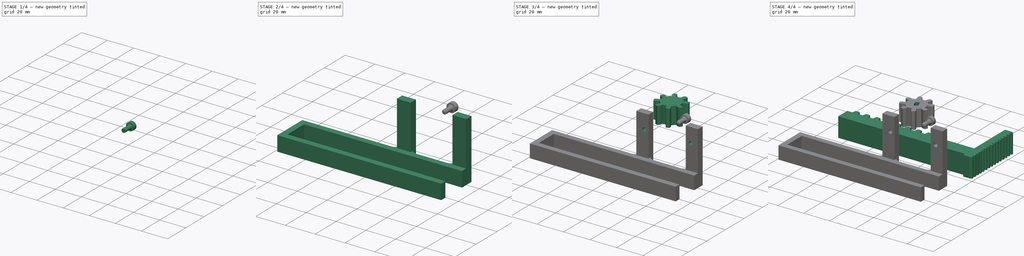
[diagram: build sequence overview — one tinted view per stage of 4, left to right]
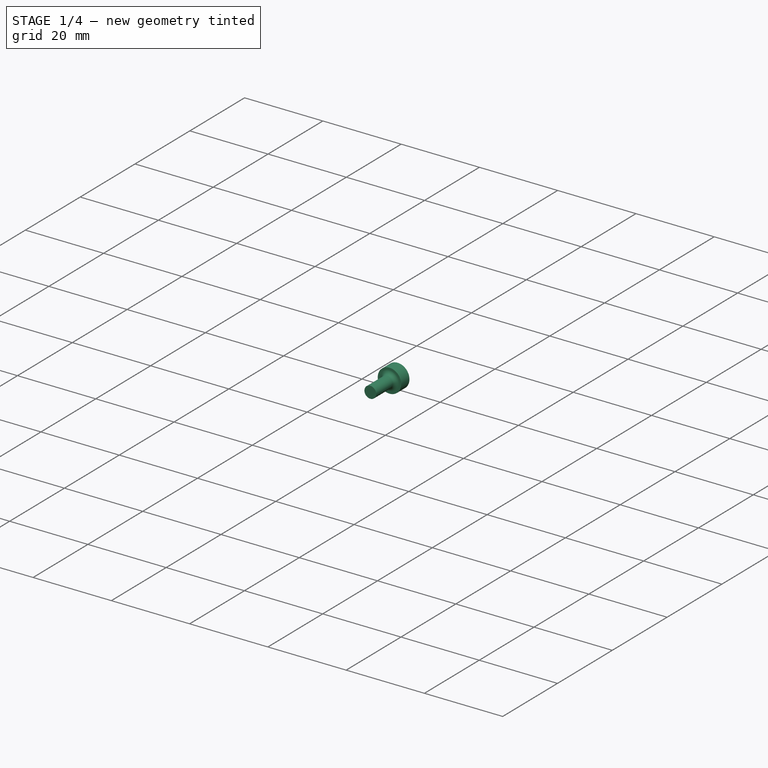
[diagram: stage 1 of 4 — iso view after this stage's code; geometry added in this stage tinted green]
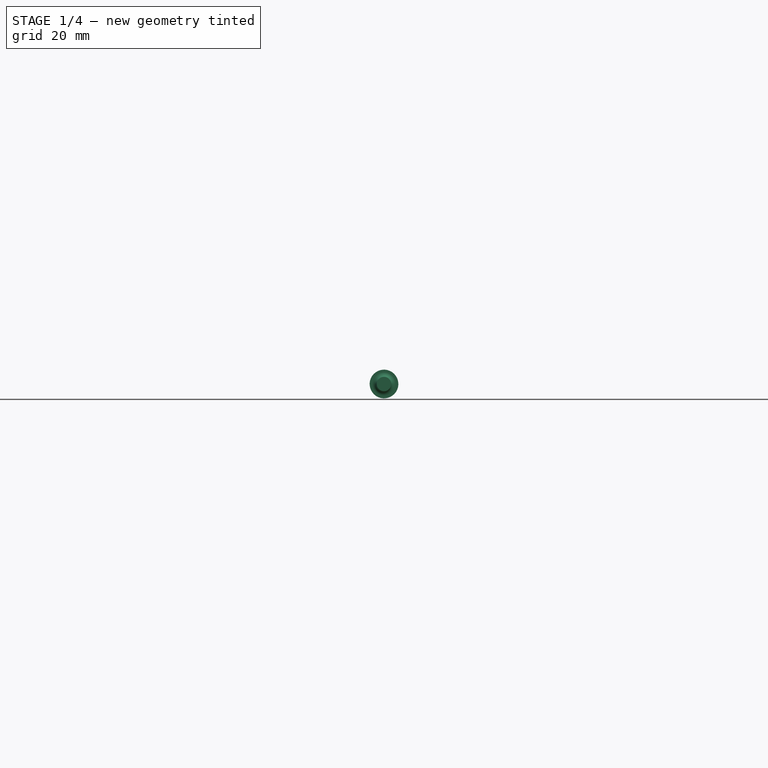
[diagram: stage 1 of 4 — front view after this stage's code; geometry added in this stage tinted green]
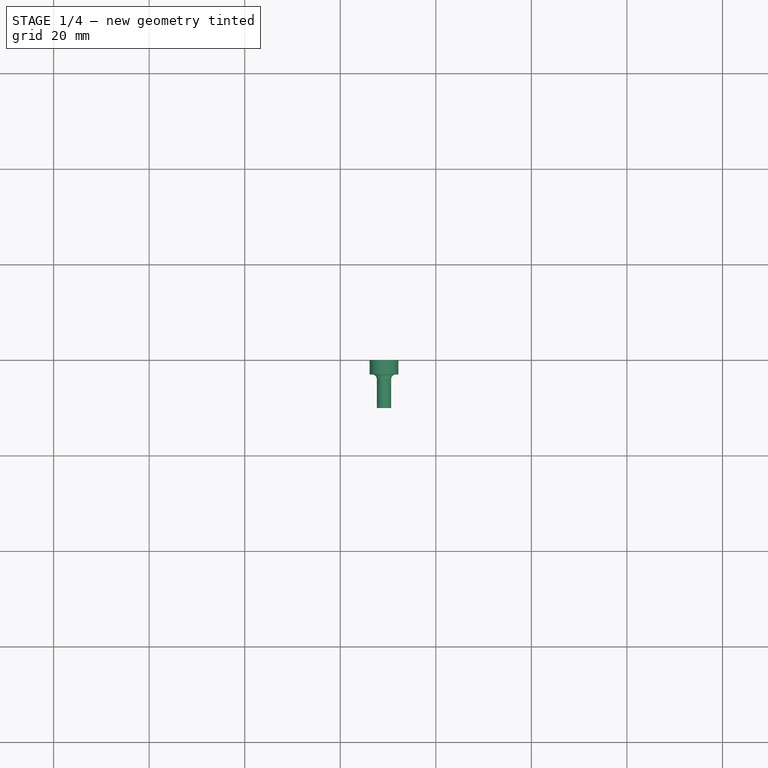
[diagram: stage 1 of 4 — top view after this stage's code; geometry added in this stage tinted green]
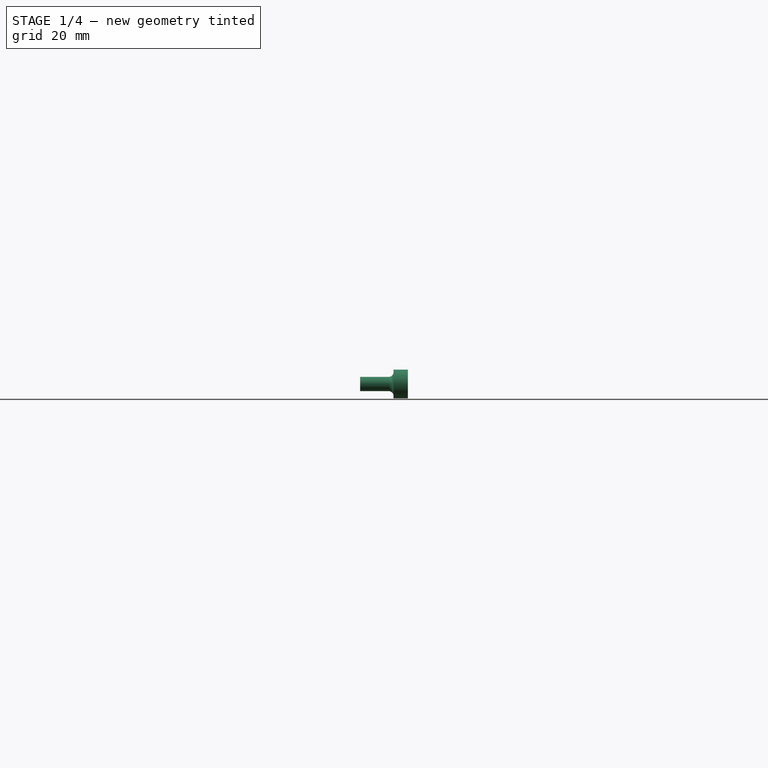
[diagram: stage 1 of 4 — right view after this stage's code; geometry added in this stage tinted green]
FCSTD DOCUMENT  (FreeCAD 0.16R6712 (Git))
Label: gear
License: All rights reserved
LicenseURL: http://en.wikipedia.org/wiki/All_rights_reserved
objects: Sketcher::SketchObject×9, PartDesign::Pad×5, App::MeasureDistance×4, Part::FeaturePython×2, PartDesign::Pocket×2, PartDesign::Fillet×2
note: 27 computed .brp shape members not serialized (recipe doc carries the construction recipe); baked Part::Feature solids carry a one-line shape summary decoded from their .brp

FEATURE [App::MeasureDistance] Distance002  label="Distance: 15.1098 mm"
  Distance = 15.1098
  P1 = (-9.7107,11,0)
  P2 = (-7.89263,11,15)
FEATURE [App::MeasureDistance] Distance003  label="Distance: 16.2804 mm"
  Distance = 16.2804
  P1 = (-23.5578,-27.4611,10)
  P2 = (-20.5495,-43.4611,10)
FEATURE [Sketcher::SketchObject] Sketch007
  Placement = pos=(0,0,0) rot=(-1,0,0;4.71239rad)
  sketch-geometry (1):
    g0: Circle CenterX=-30.8484 CenterY=32.3111 CenterZ=0 NormalX=0 NormalY=0 NormalZ=1 Radius=3
  constraints (1):
    c: Radius(g0) = 3
FEATURE [PartDesign::Pad] Pad003
  Length = 3
  Length2 = 100
  Placement = pos=(0,0,0) rot=(-1,0,0;4.71239rad)
  Sketch = -> Sketch007
  Type = 0
FEATURE [Sketcher::SketchObject] Sketch008
  ExternalGeometry = -> [Pad003]
  Placement = pos=(0,-3,0) rot=(1,0,0;1.5708rad)
  Support = -> Pad003 [Face3]
  sketch-geometry (1):
    g0: Circle CenterX=-30.8484 CenterY=32.3111 CenterZ=0 NormalX=0 NormalY=0 NormalZ=1 Radius=1.5
  constraints (2):
    c: Radius(g0) = 1.5
    c: Coincident(g0,g-3)
FEATURE [PartDesign::Pad] Pad004
  Length = 7
  Length2 = 82
  Placement = pos=(0,0,0) rot=(-1,0,0;4.71239rad)
  Sketch = -> Sketch008
  Type = 0
FEATURE [PartDesign::Fillet] Fillet
  Base = -> Pad004 [Edge4]
  Placement = pos=(0,0,0) rot=(-1,0,0;4.71239rad)
  Radius = 1
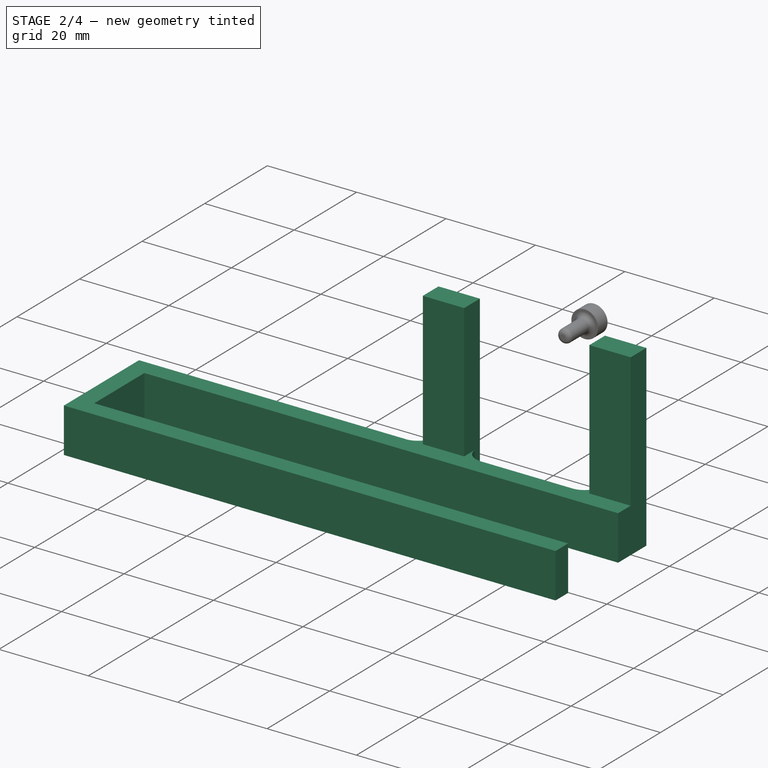
[diagram: stage 2 of 4 — iso view after this stage's code; geometry added in this stage tinted green]
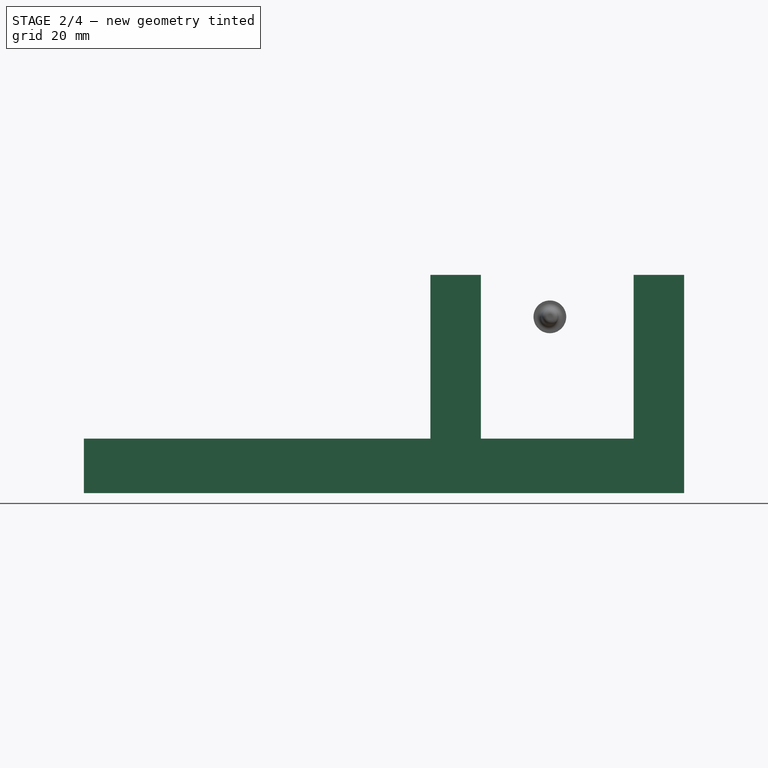
[diagram: stage 2 of 4 — front view after this stage's code; geometry added in this stage tinted green]
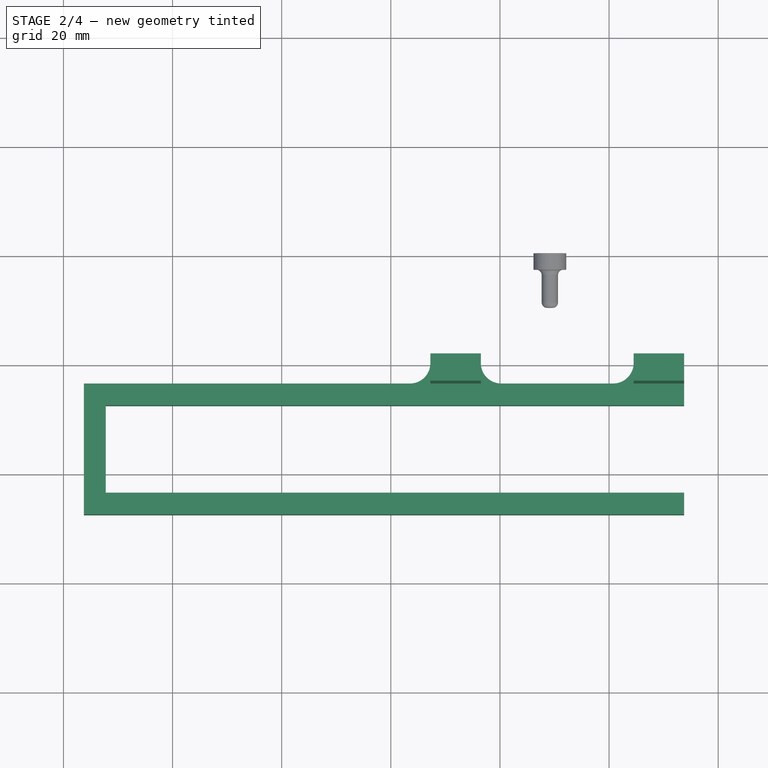
[diagram: stage 2 of 4 — top view after this stage's code; geometry added in this stage tinted green]
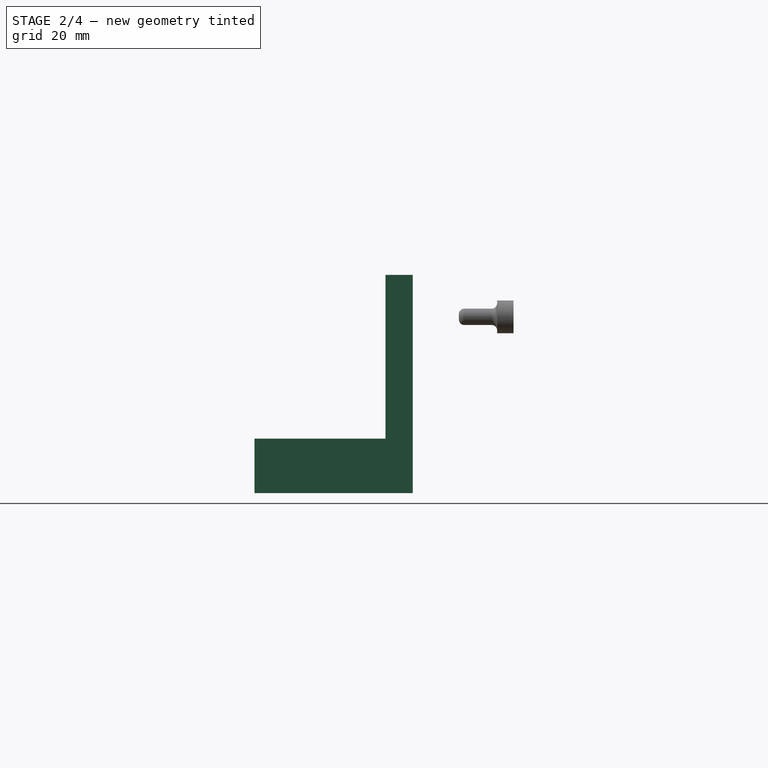
[diagram: stage 2 of 4 — right view after this stage's code; geometry added in this stage tinted green]
FEATURE [Sketcher::SketchObject] Sketch003
  sketch-geometry (4):
    g0: Circle CenterX=-57.9793 CenterY=21.8922 CenterZ=0 NormalX=0 NormalY=0 NormalZ=1 Radius=11.4248
    g1: GeomPoint [constr] X=-59.8931 Y=23.5985 Z=0
    g2: Circle CenterX=-57.9793 CenterY=21.8922 CenterZ=0 NormalX=0 NormalY=0 NormalZ=1 Radius=0
    g3: Circle CenterX=-57.9793 CenterY=21.8922 CenterZ=0 NormalX=0 NormalY=0 NormalZ=1 Radius=0.882686
  constraints (3):
    c: Radius(g0) = 11.4248
    c: Coincident(g2,g0)
    c: Coincident(g3,g0)
FEATURE [App::MeasureDistance] Distance  label="Distance: 20.9984 mm"
  Distance = 20.8922
  P1 = (-57.9793,21.8922,0)
  P2 = (-58,1,0)
FEATURE [Sketcher::SketchObject] Sketch002
  sketch-geometry (17):
    g0: LineSegment StartX=-39.7574 StartY=-23.4611 StartZ=0 EndX=-19.2353 EndY=-23.4611 EndZ=0
    g1: LineSegment StartX=-6.24636 StartY=-47.4611 StartZ=0 EndX=-116.246 EndY=-47.4611 EndZ=0
    g2: LineSegment StartX=-116.246 StartY=-47.4611 StartZ=0 EndX=-116.246 EndY=-23.4611 EndZ=0
    g3: LineSegment StartX=-6.24636 StartY=-27.4611 StartZ=0 EndX=-112.246 EndY=-27.4611 EndZ=0
    g4: LineSegment StartX=-112.246 StartY=-27.4611 StartZ=0 EndX=-112.246 EndY=-43.4611 EndZ=0
    g5: LineSegment StartX=-112.246 StartY=-43.4611 StartZ=0 EndX=-6.24636 EndY=-43.4611 EndZ=0
    g6: LineSegment StartX=-52.7464 StartY=-18.4611 StartZ=0 EndX=-43.4964 EndY=-18.4611 EndZ=0
    g7: LineSegment StartX=-43.4964 StartY=-18.4611 StartZ=0 EndX=-43.4964 EndY=-19.7221 EndZ=0
    g8: LineSegment StartX=-52.7464 StartY=-19.7221 StartZ=0 EndX=-52.7464 EndY=-18.4611 EndZ=0
    g9: LineSegment StartX=-15.4964 StartY=-18.4611 StartZ=0 EndX=-6.24636 EndY=-18.4611 EndZ=0
    g10: LineSegment StartX=-15.4964 StartY=-19.7221 StartZ=0 EndX=-15.4964 EndY=-18.4611 EndZ=0
    g11: LineSegment StartX=-6.24636 StartY=-43.4611 StartZ=0 EndX=-6.24636 EndY=-47.4611 EndZ=0
    g12: LineSegment StartX=-116.246 StartY=-23.4611 StartZ=0 EndX=-56.4853 EndY=-23.4611 EndZ=0
    g13: ArcOfCircle CenterX=-39.7574 CenterY=-19.7221 CenterZ=0 NormalX=0 NormalY=0 NormalZ=1 Radius=3.73895 StartAngle=3.14159 EndAngle=4.71239
    g14: ArcOfCircle CenterX=-56.4853 CenterY=-19.7221 CenterZ=0 NormalX=0 NormalY=0 NormalZ=1 Radius=3.73895 StartAngle=4.71239 EndAngle=6.28319
    g15: ArcOfCircle CenterX=-19.2353 CenterY=-19.7221 CenterZ=0 NormalX=0 NormalY=0 NormalZ=1 Radius=3.73895 StartAngle=4.71239 EndAngle=6.28319
    g16: LineSegment StartX=-6.24636 StartY=-18.4611 StartZ=0 EndX=-6.24636 EndY=-27.4611 EndZ=0
  constraints (46):
    c: Coincident(g11,g1)
    c: Coincident(g1,g2)
    c: Horizontal(g1)
    c: Vertical(g2)
    c: Coincident(g3,g4)
    c: Coincident(g4,g5)
    c: Horizontal(g3)
    c: Horizontal(g5)
    c: Vertical(g4)
    c: DistanceY(g5,g3) = 16
    c: DistanceX(g3,g3) = 106
    c: Coincident(g6,g7)
    c: Coincident(g8,g6)
    c: Horizontal(g6)
    c: Vertical(g7)
    c: Vertical(g8)
    c: DistanceX(g6,g6) = 9.25
    c: Coincident(g10,g9)
    c: Horizontal(g9)
    c: Vertical(g10)
    c: Equal(g6,g9) = 10
    c: DistanceX(g2,g3) = 4
    c: Coincident(g12,g2)
    c: Horizontal(g12)
    c: DistanceX(g6,g9) = 28
    c: Coincident(g5,g11)
    c: DistanceY(g2,g2) = 24
    c: DistanceY(g3,g2) = 4
    c: Horizontal(g0)
    c: Equal(g3,g5)
    c: Vertical(g11)
    c: Tangent(g7,g13) = -1.5708
    c: Tangent(g0,g13) = -1.5708
    c: Tangent(g8,g14) = -1.5708
    c: Tangent(g12,g14) = -1.5708
    c: Tangent(g0,g15) = -1.5708
    c: Tangent(g10,g15) = -1.5708
    c: Equal(g8,g7)
    c: Equal(g7,g10)
    c: DistanceY(g12,g6) = 5
    c: Equal(g14,g13)
    c: Equal(g13,g15)
    c: Coincident(g16,g9)
    c: Vertical(g16)
    c: Coincident(g3,g16)
    c: DistanceX(g7,g13) = 3.73895
FEATURE [PartDesign::Pad] Pad001
  Length = 10
  Length2 = 100
  Sketch = -> Sketch002
  Type = 0
FEATURE [Sketcher::SketchObject] Sketch004
  Placement = pos=(0,0,10) rot=(0,0,1;0rad)
  Support = -> Pad001 [Face19]
FEATURE [Sketcher::SketchObject] Sketch005
  ExternalGeometry = -> [Pad001]
  Placement = pos=(0,0,10) rot=(0,0,1;0rad)
  Support = -> Pad001 [Face19]
  sketch-geometry (8):
    g0: LineSegment StartX=-6.24636 StartY=-23.4611 StartZ=0 EndX=-6.24636 EndY=-18.4611 EndZ=0
    g1: LineSegment StartX=-15.4964 StartY=-18.4611 StartZ=0 EndX=-15.4964 EndY=-23.4611 EndZ=0
    g2: LineSegment StartX=-52.7464 StartY=-18.4611 StartZ=0 EndX=-52.7464 EndY=-23.4611 EndZ=0
    g3: LineSegment StartX=-52.7464 StartY=-18.4611 StartZ=0 EndX=-43.4964 EndY=-18.4611 EndZ=0
    g4: LineSegment StartX=-43.4964 StartY=-23.4611 StartZ=0 EndX=-43.4964 EndY=-18.4611 EndZ=0
    g5: LineSegment StartX=-15.4964 StartY=-18.4611 StartZ=0 EndX=-6.24636 EndY=-18.4611 EndZ=0
    g6: LineSegment StartX=-15.4964 StartY=-23.4611 StartZ=0 EndX=-6.24636 EndY=-23.4611 EndZ=0
    g7: LineSegment StartX=-52.7464 StartY=-23.4611 StartZ=0 EndX=-43.4964 EndY=-23.4611 EndZ=0
  constraints (22):
    c: Vertical(g0)
    c: Vertical(g1)
    c: Horizontal(g3)
    c: Vertical(g4)
    c: Horizontal(g5)
    c: Coincident(g6,g1)
    c: Horizontal(g6)
    c: Coincident(g0,g5)
    c: Coincident(g7,g4)
    c: Horizontal(g7)
    c: Vertical(g2)
    c: Coincident(g2,g7)
    c: Coincident(g3,g-3)
    c: Coincident(g1,g-6)
    c: Coincident(g0,g-6)
    c: DistanceY(g-7,g1) = 0
    c: DistanceY(g-7,g4) = 0
    c: Coincident(g0,g6)
    c: Coincident(g1,g5)
    c: Coincident(g2,g-3)
    c: Coincident(g3,g4)
    c: Coincident(g2,g3)
FEATURE [PartDesign::Pad] Pad002
  Length = 30
  Length2 = 100
  Sketch = -> Sketch005
  Type = 0
FEATURE [PartDesign::Fillet] Fillet001
  Base = -> Fillet [Edge8]
  Placement = pos=(0,0,0) rot=(-1,0,0;4.71239rad)
  Radius = 1
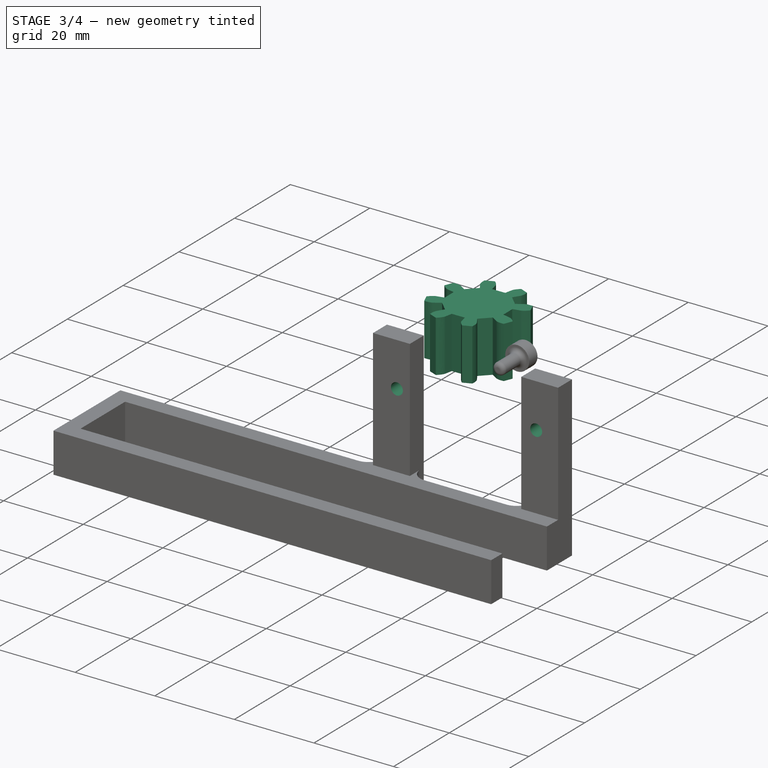
[diagram: stage 3 of 4 — iso view after this stage's code; geometry added in this stage tinted green]
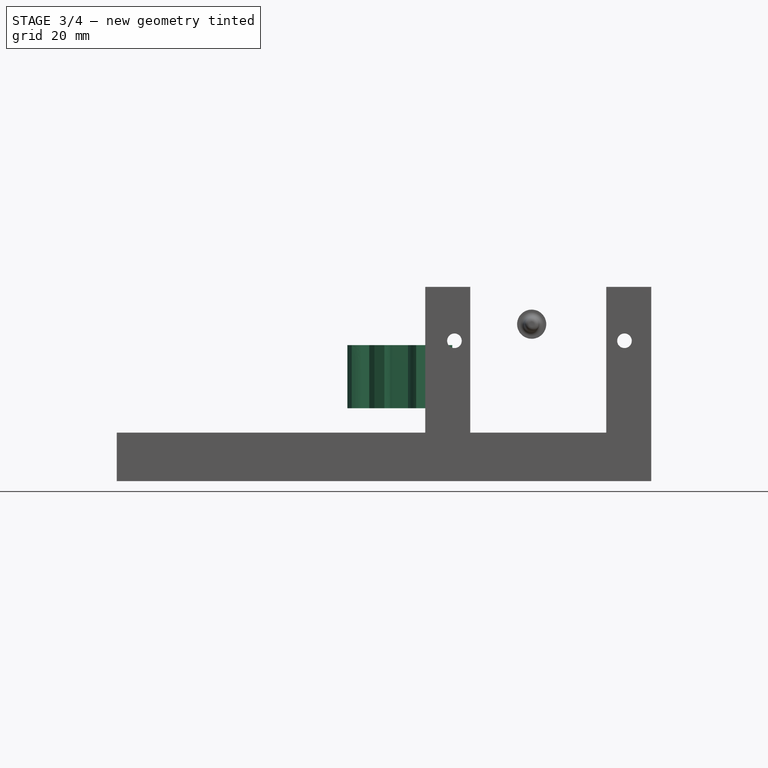
[diagram: stage 3 of 4 — front view after this stage's code; geometry added in this stage tinted green]
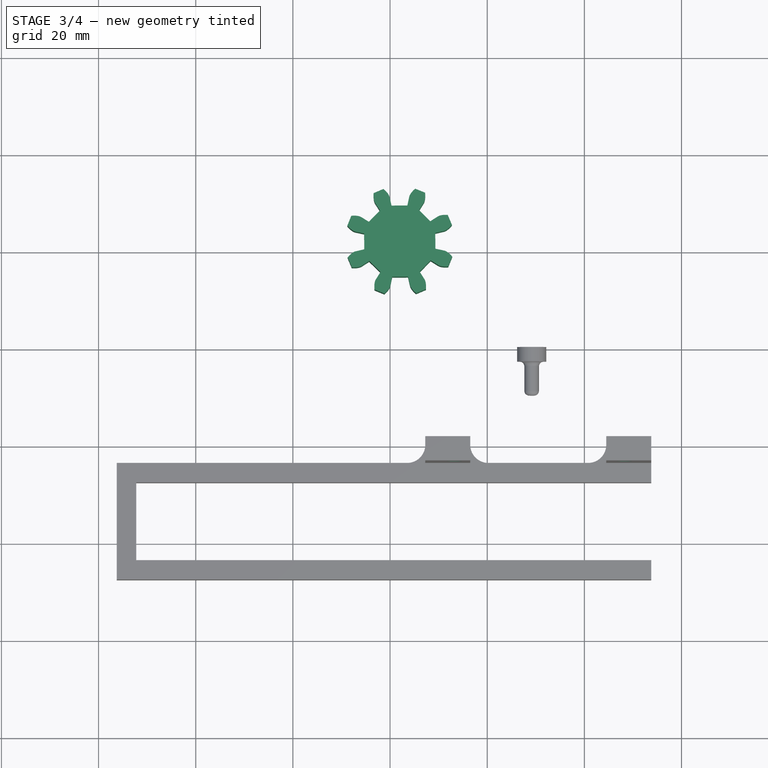
[diagram: stage 3 of 4 — top view after this stage's code; geometry added in this stage tinted green]
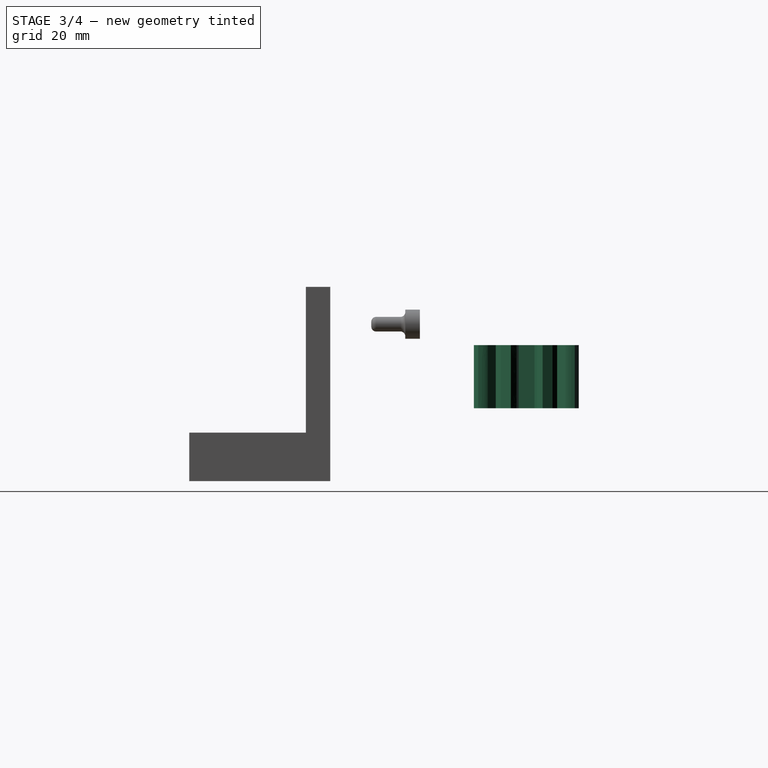
[diagram: stage 3 of 4 — right view after this stage's code; geometry added in this stage tinted green]
FEATURE [Part::FeaturePython] InvoluteGear  # WARN: FeaturePython — macro-defined, semantics opaque (R4)
  Placement = pos=(-58,21.9,15) rot=(0,0,1;0.401426rad)
  backlash = 0.15
  beta = 0
  clearance = 0
  double_helix = false
  head = -0.5
  height = 13
  module = 2.5
  numpoints = 6
  pressure_angle = 20
  reversed_backlash = false
  shift = 0
  simple = false
  teeth = 8
  undercut = false
FEATURE [Sketcher::SketchObject] Sketch006
  ExternalGeometry = -> [Pad002]
  Placement = pos=(0,-23.4611,0) rot=(1,0,0;1.5708rad)
  Support = -> Pad002 [Face21]
  sketch-geometry (2):
    g0: Circle CenterX=-46.7464 CenterY=28.9 CenterZ=0 NormalX=0 NormalY=0 NormalZ=1 Radius=1.5
    g1: Circle CenterX=-11.7464 CenterY=28.9 CenterZ=0 NormalX=0 NormalY=0 NormalZ=1 Radius=1.5
  constraints (6):
    c: Radius(g0) = 1.5
    c: Radius(g1) = 1.5
    c: DistanceY(g-6,g0) = 28.9
    c: DistanceX(g0,g1) = 35
    c: DistanceY(g0,g1) = 0
    c: DistanceX(g0,g-4) = 3.25
FEATURE [PartDesign::Pocket] Pocket001
  Length = 11
  Sketch = -> Sketch006
  Type = 0
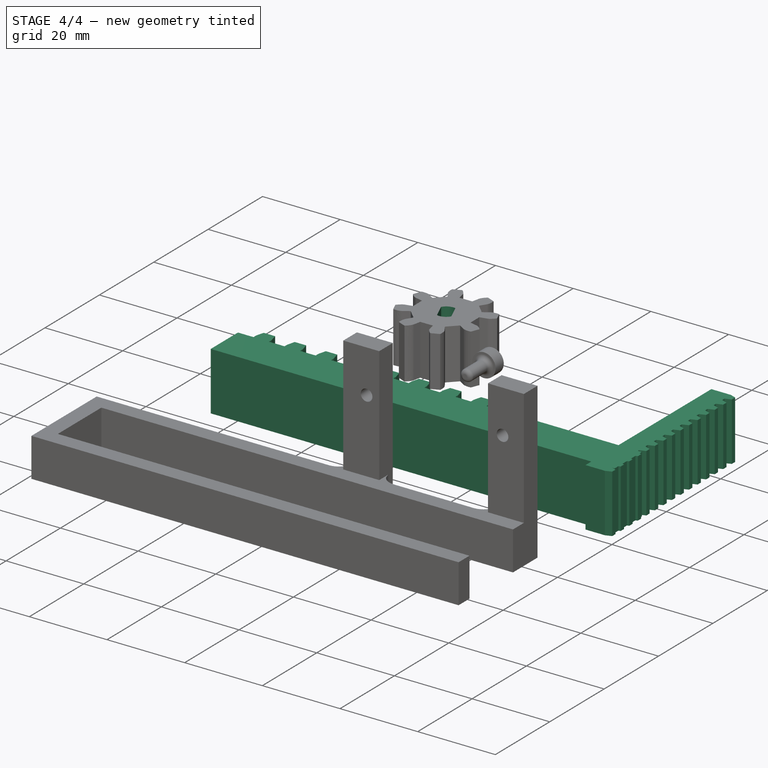
[diagram: stage 4 of 4 — iso view after this stage's code; geometry added in this stage tinted green]
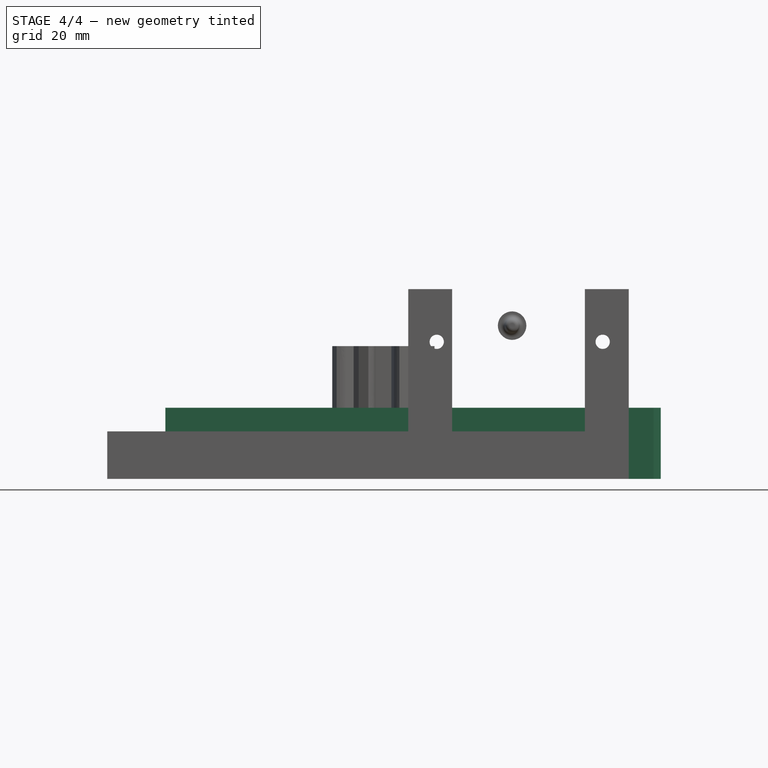
[diagram: stage 4 of 4 — front view after this stage's code; geometry added in this stage tinted green]
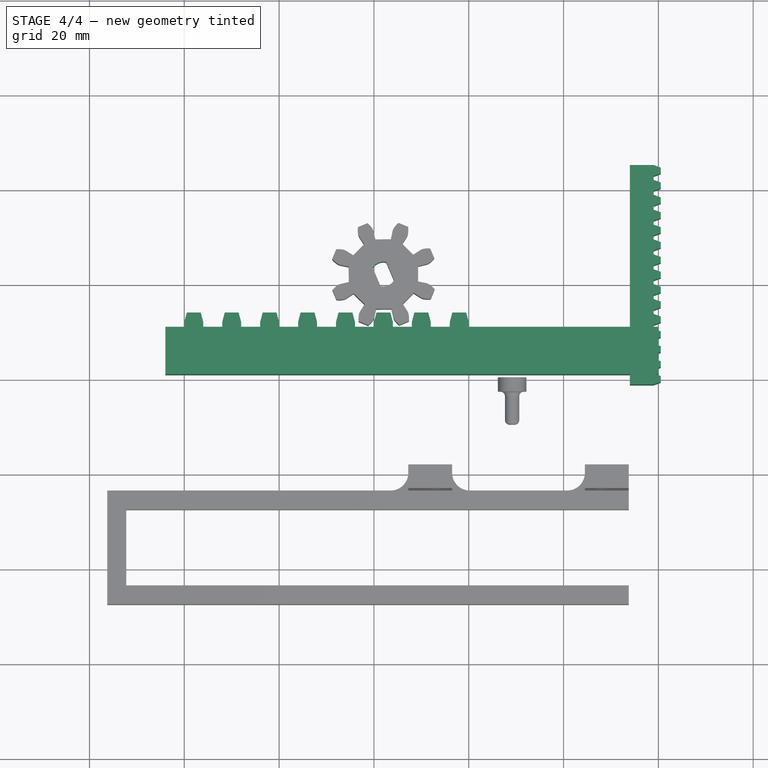
[diagram: stage 4 of 4 — top view after this stage's code; geometry added in this stage tinted green]
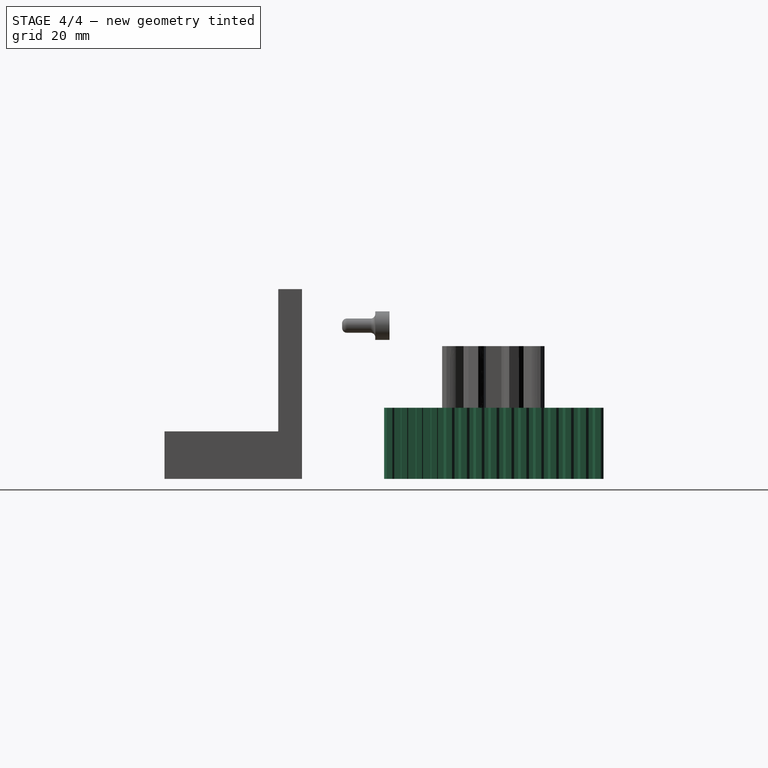
[diagram: stage 4 of 4 — right view after this stage's code; geometry added in this stage tinted green]
FEATURE [Sketcher::SketchObject] Sketch
  Placement = pos=(0,1,0) rot=(0,0,1;0rad)
  sketch-geometry (76):
    g0: LineSegment StartX=-104 StartY=0 StartZ=0 EndX=-104 EndY=10 EndZ=0
    g1: LineSegment StartX=-100 StartY=10 StartZ=0 EndX=-104 EndY=10 EndZ=0
    g2: GeomPoint [constr] X=-100 Y=11 Z=0
    g3: LineSegment StartX=-100 StartY=11 StartZ=0 EndX=-99.4641 EndY=13 EndZ=0
    g4: LineSegment StartX=-100 StartY=11 StartZ=0 EndX=-100 EndY=10 EndZ=0
    g5: LineSegment StartX=-99.4641 StartY=13 StartZ=0 EndX=-96.5359 EndY=13 EndZ=0
    g6: GeomPoint [constr] X=-96 Y=11 Z=0
    g7: LineSegment StartX=-96 StartY=11 StartZ=0 EndX=-96 EndY=10 EndZ=0
    g8: GeomPoint [constr] X=-96 Y=11 Z=0
    g9: LineSegment StartX=-96 StartY=11 StartZ=0 EndX=-96.5359 EndY=13 EndZ=0
    g10: LineSegment StartX=-92 StartY=10 StartZ=0 EndX=-96 EndY=10 EndZ=0
    g11: GeomPoint [constr] X=-92 Y=11 Z=0
    g12: LineSegment StartX=-92 StartY=11 StartZ=0 EndX=-91.4641 EndY=13 EndZ=0
    g13: LineSegment StartX=-92 StartY=11 StartZ=0 EndX=-92 EndY=10 EndZ=0
    g14: LineSegment StartX=-91.4641 StartY=13 StartZ=0 EndX=-88.5359 EndY=13 EndZ=0
    g15: GeomPoint [constr] X=-88 Y=11 Z=0
    g16: LineSegment StartX=-88 StartY=11 StartZ=0 EndX=-88 EndY=10 EndZ=0
    g17: GeomPoint [constr] X=-88 Y=11 Z=0
    g18: LineSegment StartX=-88 StartY=11 StartZ=0 EndX=-88.5359 EndY=13 EndZ=0
    g19: LineSegment StartX=-84 StartY=10 StartZ=0 EndX=-88 EndY=10 EndZ=0
    g20: GeomPoint [constr] X=-84 Y=11 Z=0
    g21: LineSegment StartX=-84 StartY=11 StartZ=0 EndX=-83.4641 EndY=13 EndZ=0
    g22: LineSegment StartX=-84 StartY=11 StartZ=0 EndX=-84 EndY=10 EndZ=0
    g23: LineSegment StartX=-83.4641 StartY=13 StartZ=0 EndX=-80.5359 EndY=13 EndZ=0
    g24: GeomPoint [constr] X=-80 Y=11 Z=0
    g25: LineSegment StartX=-80 StartY=11 StartZ=0 EndX=-80 EndY=10 EndZ=0
    g26: GeomPoint [constr] X=-80 Y=11 Z=0
    g27: LineSegment StartX=-80 StartY=11 StartZ=0 EndX=-80.5359 EndY=13 EndZ=0
    g28: LineSegment StartX=-76 StartY=10 StartZ=0 EndX=-80 EndY=10 EndZ=0
    g29: GeomPoint [constr] X=-76 Y=11 Z=0
    g30: LineSegment StartX=-76 StartY=11 StartZ=0 EndX=-75.4641 EndY=13 EndZ=0
    g31: LineSegment StartX=-76 StartY=11 StartZ=0 EndX=-76 EndY=10 EndZ=0
    g32: LineSegment StartX=-75.4641 StartY=13 StartZ=0 EndX=-72.5359 EndY=13 EndZ=0
    g33: GeomPoint [constr] X=-72 Y=11 Z=0
    g34: LineSegment StartX=-72 StartY=11 StartZ=0 EndX=-72 EndY=10 EndZ=0
    g35: GeomPoint [constr] X=-72 Y=11 Z=0
    g36: LineSegment StartX=-72 StartY=11 StartZ=0 EndX=-72.5359 EndY=13 EndZ=0
    g37: LineSegment StartX=-68 StartY=10 StartZ=0 EndX=-72 EndY=10 EndZ=0
    g38: GeomPoint [constr] X=-68 Y=11 Z=0
    g39: LineSegment StartX=-68 StartY=11 StartZ=0 EndX=-67.4641 EndY=13 EndZ=0
    g40: LineSegment StartX=-68 StartY=11 StartZ=0 EndX=-68 EndY=10 EndZ=0
    g41: LineSegment StartX=-67.4641 StartY=13 StartZ=0 EndX=-64.5359 EndY=13 EndZ=0
    g42: GeomPoint [constr] X=-64 Y=11 Z=0
    g43: LineSegment StartX=-64 StartY=11 StartZ=0 EndX=-64 EndY=10 EndZ=0
    g44: GeomPoint [constr] X=-64 Y=11 Z=0
    g45: LineSegment StartX=-64 StartY=11 StartZ=0 EndX=-64.5359 EndY=13 EndZ=0
    g46: LineSegment StartX=-60 StartY=10 StartZ=0 EndX=-64 EndY=10 EndZ=0
    g47: GeomPoint [constr] X=-60 Y=11 Z=0
    g48: LineSegment StartX=-60 StartY=11 StartZ=0 EndX=-59.4641 EndY=13 EndZ=0
    g49: LineSegment StartX=-60 StartY=11 StartZ=0 EndX=-60 EndY=10 EndZ=0
    g50: LineSegment StartX=-59.4641 StartY=13 StartZ=0 EndX=-56.5359 EndY=13 EndZ=0
    g51: GeomPoint [constr] X=-56 Y=11 Z=0
    g52: LineSegment StartX=-56 StartY=11 StartZ=0 EndX=-56 EndY=10 EndZ=0
    g53: GeomPoint [constr] X=-56 Y=11 Z=0
    g54: LineSegment StartX=-56 StartY=11 StartZ=0 EndX=-56.5359 EndY=13 EndZ=0
    g55: LineSegment StartX=-52 StartY=10 StartZ=0 EndX=-56 EndY=10 EndZ=0
    g56: GeomPoint [constr] X=-52 Y=11 Z=0
    g57: LineSegment StartX=-52 StartY=11 StartZ=0 EndX=-51.4641 EndY=13 EndZ=0
    g58: LineSegment StartX=-52 StartY=11 StartZ=0 EndX=-52 EndY=10 EndZ=0
    g59: LineSegment StartX=-51.4641 StartY=13 StartZ=0 EndX=-48.5359 EndY=13 EndZ=0
    g60: GeomPoint [constr] X=-48 Y=11 Z=0
    g61: LineSegment StartX=-48 StartY=11 StartZ=0 EndX=-48 EndY=10 EndZ=0
    g62: GeomPoint [constr] X=-48 Y=11 Z=0
    g63: LineSegment StartX=-48 StartY=11 StartZ=0 EndX=-48.5359 EndY=13 EndZ=0
    g64: LineSegment StartX=-44 StartY=10 StartZ=0 EndX=-48 EndY=10 EndZ=0
    g65: GeomPoint [constr] X=-44 Y=11 Z=0
    g66: LineSegment StartX=-44 StartY=11 StartZ=0 EndX=-43.4641 EndY=13 EndZ=0
    g67: LineSegment StartX=-44 StartY=11 StartZ=0 EndX=-44 EndY=10 EndZ=0
    g68: LineSegment StartX=-43.4641 StartY=13 StartZ=0 EndX=-40.5359 EndY=13 EndZ=0
    g69: GeomPoint [constr] X=-40 Y=11 Z=0
    g70: LineSegment StartX=-40 StartY=11 StartZ=0 EndX=-40 EndY=10 EndZ=0
    g71: GeomPoint [constr] X=-40 Y=11 Z=0
    g72: LineSegment StartX=-40 StartY=11 StartZ=0 EndX=-40.5359 EndY=13 EndZ=0
    g73: LineSegment StartX=-40 StartY=10 StartZ=0 EndX=0 EndY=10 EndZ=0
    g74: LineSegment StartX=0 StartY=0 StartZ=0 EndX=0 EndY=10 EndZ=0
    g75: LineSegment StartX=-104 StartY=0 StartZ=0 EndX=0 EndY=0 EndZ=0
  constraints (179):
    c: Vertical(g0)
    c: Coincident(g1,g0)
    c: Horizontal(g1)
    c: DistanceY(g0,g0) = 10
    c: DistanceX(g1,g1) = 4
    c: Coincident(g3,g2)
    c: Coincident(g4,g2)
    c: Vertical(g4)
    c: Coincident(g1,g4)
    c: Coincident(g5,g3)
    c: Horizontal(g5)
    c: Coincident(g7,g6)
    c: Vertical(g7)
    c: Coincident(g9,g8)
    c: Coincident(g5,g9)
    c: Coincident(g6,g8)
    c: Equal(g7,g4)
    c: DistanceY(g4,g4) = 1
    c: DistanceY(g1,g3) = 3
    c: DistanceX(g2,g6) = 4
    c: Equal(g3,g9)
    c: Angle(g4,g3) = 2.87979
    c: Angle(g9,g7) = 2.87979
    c: Horizontal(g10)
    c: Equal(g1,g10) = 4
    c: Coincident(g12,g11)
    c: Coincident(g13,g11)
    c: Vertical(g13)
    c: Coincident(g10,g13)
    c: Coincident(g14,g12)
    c: Horizontal(g14)
    c: Coincident(g16,g15)
    c: Vertical(g16)
    c: Coincident(g18,g17)
    c: Coincident(g14,g18)
    c: Coincident(g15,g17)
    c: Equal(g16,g13)
    c: Equal(g4,g13) = 1
    c: DistanceY(g10,g12) = 3
    c: DistanceX(g11,g15) = 4
    c: Equal(g12,g18)
    c: Angle(g13,g12) = 2.87979
    c: Angle(g18,g16) = 2.87979
    c: Coincident(g7,g10)
    c: Horizontal(g19)
    c: Equal(g1,g19) = 4
    c: Coincident(g21,g20)
    c: Coincident(g22,g20)
    c: Vertical(g22)
    c: Coincident(g19,g22)
    c: Coincident(g23,g21)
    c: Horizontal(g23)
    c: Coincident(g25,g24)
    c: Vertical(g25)
    c: Coincident(g27,g26)
    c: Coincident(g23,g27)
    c: Coincident(g24,g26)
    c: Equal(g25,g22)
    c: Equal(g4,g22) = 1
    c: DistanceY(g19,g21) = 3
    c: DistanceX(g20,g24) = 4
    c: Equal(g21,g27)
    c: Angle(g22,g21) = 2.87979
    c: Angle(g27,g25) = 2.87979
    c: Horizontal(g28)
    c: Equal(g19,g28) = 4
    c: Coincident(g30,g29)
    c: Coincident(g31,g29)
    c: Vertical(g31)
    c: Coincident(g28,g31)
    c: Coincident(g32,g30)
    c: Horizontal(g32)
    c: Coincident(g34,g33)
    c: Vertical(g34)
    c: Coincident(g36,g35)
    c: Coincident(g32,g36)
    c: Coincident(g33,g35)
    c: Equal(g34,g31)
    c: Equal(g22,g31) = 1
    c: DistanceY(g28,g30) = 3
    c: DistanceX(g29,g33) = 4
    c: Equal(g30,g36)
    c: Angle(g31,g30) = 2.87979
    c: Angle(g36,g34) = 2.87979
    c: Coincident(g25,g28)
    c: Coincident(g16,g19)
    c: Horizontal(g37)
    c: Equal(g1,g37) = 4
    c: Coincident(g39,g38)
    c: Coincident(g40,g38)
    c: Vertical(g40)
    c: Coincident(g37,g40)
    c: Coincident(g41,g39)
    c: Horizontal(g41)
    c: Coincident(g43,g42)
    c: Vertical(g43)
    c: Coincident(g45,g44)
    c: Coincident(g41,g45)
    c: Coincident(g42,g44)
    c: Equal(g43,g40)
    c: Equal(g4,g40) = 1
    c: DistanceY(g37,g39) = 3
    c: DistanceX(g38,g42) = 4
    c: Equal(g39,g45)
    c: Angle(g40,g39) = 2.87979
    c: Angle(g45,g43) = 2.87979
    c: Horizontal(g46)
    c: Equal(g37,g46) = 4
    c: Coincident(g48,g47)
    c: Coincident(g49,g47)
    c: Vertical(g49)
    c: Coincident(g46,g49)
    c: Coincident(g50,g48)
    c: Horizontal(g50)
    c: Coincident(g52,g51)
    c: Vertical(g52)
    c: Coincident(g54,g53)
    c: Coincident(g50,g54)
    c: Coincident(g51,g53)
    c: Equal(g52,g49)
    c: Equal(g40,g49) = 1
    c: DistanceY(g46,g48) = 3
    c: DistanceX(g47,g51) = 4
    c: Equal(g48,g54)
    c: Angle(g49,g48) = 2.87979
    c: Angle(g54,g52) = 2.87979
    c: Coincident(g43,g46)
    c: Horizontal(g55)
    c: Equal(g37,g55) = 4
    c: Coincident(g57,g56)
    c: Coincident(g58,g56)
    c: Vertical(g58)
    c: Coincident(g55,g58)
    c: Coincident(g59,g57)
    c: Horizontal(g59)
    c: Coincident(g61,g60)
    c: Vertical(g61)
    c: Coincident(g63,g62)
    c: Coincident(g59,g63)
    c: Coincident(g60,g62)
    c: Equal(g61,g58)
    c: Equal(g40,g58) = 1
    c: DistanceY(g55,g57) = 3
    c: DistanceX(g56,g60) = 4
    c: Equal(g57,g63)
    c: Angle(g58,g57) = 2.87979
    c: Angle(g63,g61) = 2.87979
    c: Horizontal(g64)
    c: Equal(g55,g64) = 4
    c: Coincident(g66,g65)
    c: Coincident(g67,g65)
    c: Vertical(g67)
    c: Coincident(g64,g67)
    c: Coincident(g68,g66)
    c: Horizontal(g68)
    c: Coincident(g70,g69)
    c: Vertical(g70)
    c: Coincident(g72,g71)
    c: Coincident(g68,g72)
    c: Coincident(g69,g71)
    c: Equal(g70,g67)
    c: Equal(g58,g67) = 1
    c: DistanceY(g64,g66) = 3
    c: DistanceX(g65,g69) = 4
    c: Equal(g66,g72)
    c: Angle(g67,g66) = 2.87979
    c: Angle(g72,g70) = 2.87979
    c: Coincident(g61,g64)
    c: Coincident(g52,g55)
    c: Coincident(g34,g37)
    c: Coincident(g73,g70)
    c: Horizontal(g73)
    c: DistanceX(g73,g73) = 40
    c: Vertical(g74)
    c: Equal(g0,g74) = 10
    c: Coincident(g73,g74)
    c: Coincident(g0,g75)
    c: Coincident(g74,g75)
    c: Coincident(g74,g-1)
FEATURE [PartDesign::Pad] Pad
  Length = 15
  Length2 = 100
  Placement = pos=(0,1,0) rot=(0,0,1;0rad)
  Sketch = -> Sketch
  Type = 0
FEATURE [App::MeasureDistance] Distance001  label="Distance: 2.70723 mm"
  Distance = 2.70723
  P1 = (-56.5823,14.1352,15)
  P2 = (-59.2894,14.1091,15)
FEATURE [Part::FeaturePython] InvoluteRack  # WARN: FeaturePython — macro-defined, semantics opaque (R4)
  beta = 0
  double_helix = false
  head = -0.5
  height = 15
  module = 1
  pressure_angle = 20
  teeth = 15
  thickness = 5
FEATURE [Sketcher::SketchObject] Sketch001  label="gear hole"
  Placement = pos=(-58,21.9,28) rot=(0,0,1;0.401426rad)
  Support = -> InvoluteGear [Face50]
  sketch-geometry (4):
    g0: ArcOfCircle CenterX=0 CenterY=0 CenterZ=0 NormalX=0 NormalY=0 NormalZ=1 Radius=2.6 StartAngle=4.07369 EndAngle=5.35109
    g1: LineSegment StartX=-1.55 StartY=-2.08746 StartZ=0 EndX=-1.55 EndY=2.08746 EndZ=0
    g2: LineSegment StartX=1.55 StartY=2.08746 StartZ=0 EndX=1.55 EndY=-2.08746 EndZ=0
    g3: ArcOfCircle CenterX=0 CenterY=0 CenterZ=0 NormalX=0 NormalY=0 NormalZ=1 Radius=2.6 StartAngle=0.932094 EndAngle=2.2095
  constraints (14):
    c: Coincident(g0,g-1)
    c: Vertical(g1)
    c: Vertical(g2)
    c: Radius(g0) = 2.6
    c: Equal(g2,g1)
    c: Coincident(g0,g1)
    c: Coincident(g3,g1)
    c: Equal(g0,g3)
    c: Coincident(g0,g3)
    c: PointOnObject(g0,g2)
    c: PointOnObject(g3,g2)
    c: DistanceX(g-1,g2) = 1.55
    c: Coincident(g2,g3)
    c: Coincident(g0,g2)
FEATURE [PartDesign::Pocket] Pocket
  Length = 166
  Placement = pos=(-58,21.9,15) rot=(0,0,1;0.401426rad)
  Sketch = -> Sketch001
  Type = 0
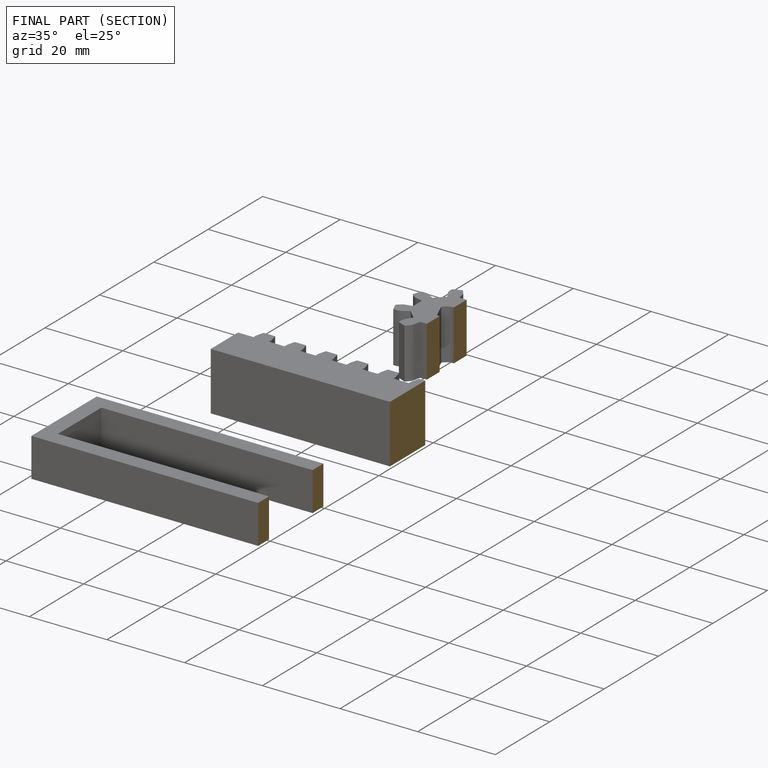
[diagram: finished part — half-section view (interior)]
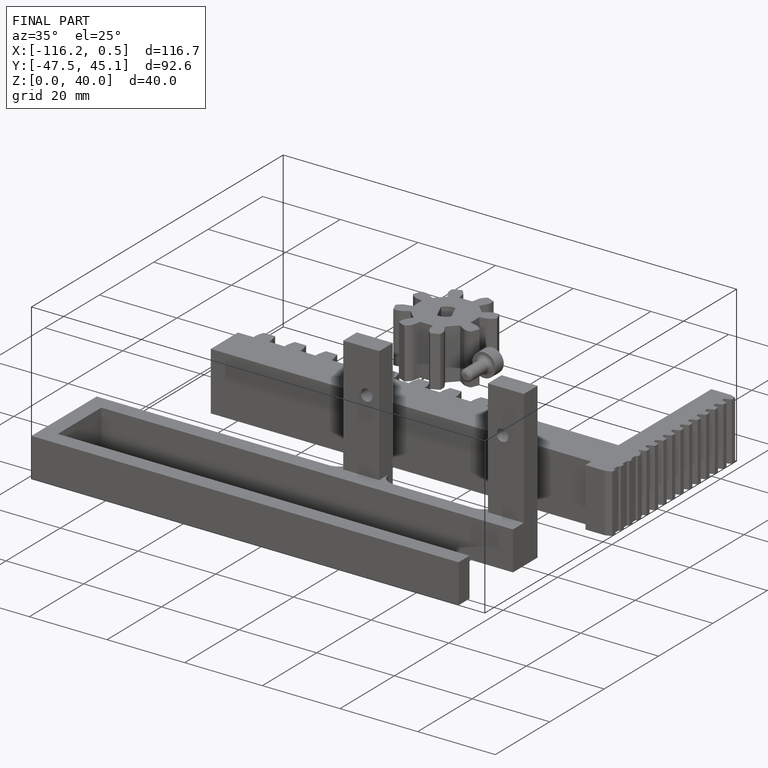
[diagram: finished part — iso view with bounding-box wireframe]
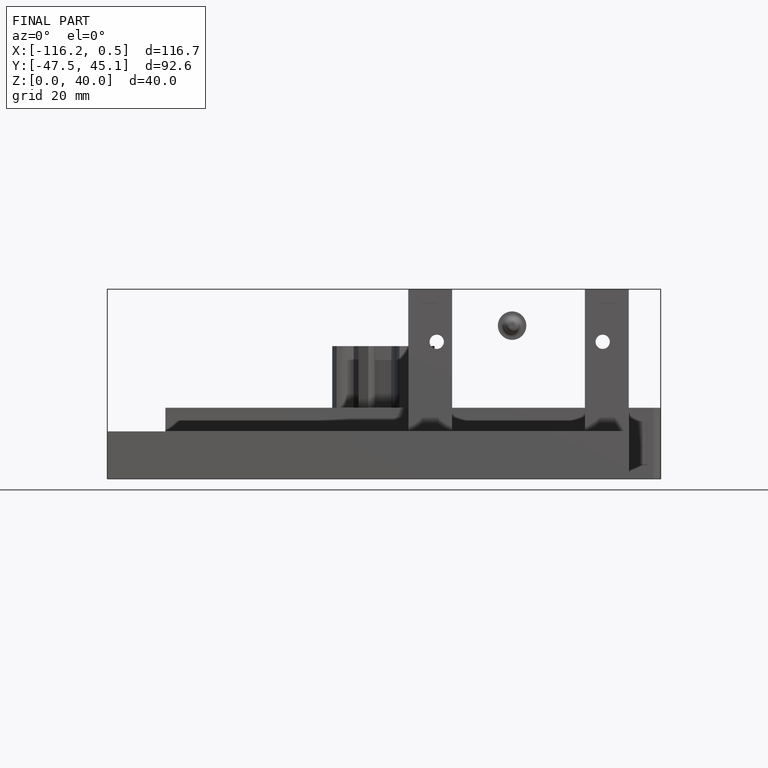
[diagram: finished part — front view with bounding-box wireframe]
